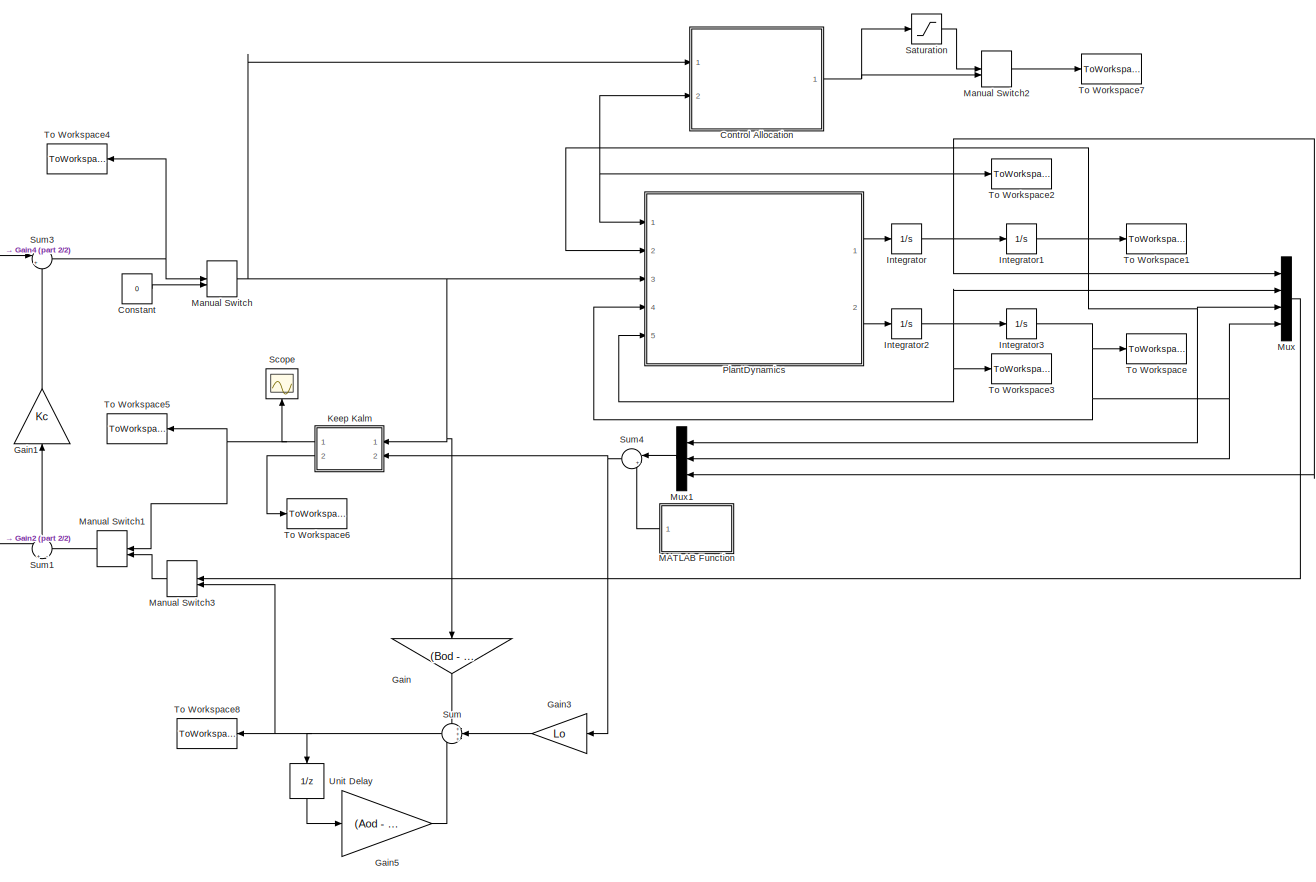
[diagram: root canvas - part 1/2, most of the canvas]
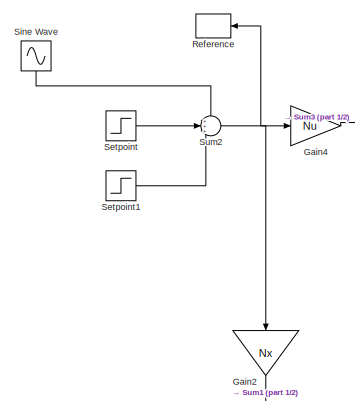
[diagram: root canvas - part 2/2, middle left region]
MODEL slx_67e9fd81cc8e
KIND model
CONFIG AbsTol = auto
CONFIG EnableMultiTasking = off
CONFIG FixedStep = T
CONFIG MaxStep = auto
CONFIG MinStep = auto
CONFIG RelTol = 1e-3
CONFIG SampleTimeConstraint = Unconstrained
CONFIG Solver = FixedStepAuto
CONFIG SolverName = FixedStepAuto
CONFIG StartTime = 0.0
CONFIG StopTime = tsim
BLOCK [Constant] Constant
  Value = 0
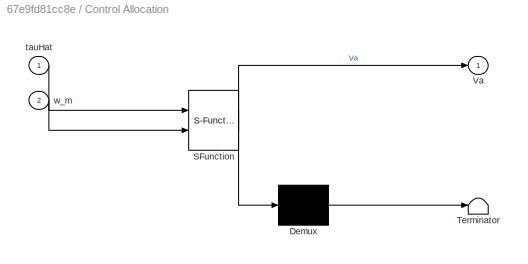
BLOCK [SubSystem] Control Allocation
  ErrorFcn = Stateflow.Translate.translate
  PermitHierarchicalResolution = ExplicitOnly
  Ports = [2, 1]
  RequestExecContextInheritance = off
  SFBlockType = MATLAB Function
  TreatAsAtomicUnit = on
BLOCK [Demux] Control Allocation/ Demux 
  Outputs = 1
  Ports = [1, 1]
BLOCK [S-Function] Control Allocation/ SFunction 
  EnableBusSupport = on
  FunctionName = sf_sfun
  Parameters = B1,B2,B3,B4,B5,B6,Kw,N,Ra,a1,a2,a3,a4,a5,a6,p1,p2,p3
  PortCounts = [2 2]
  Ports = [2, 2]
  SFcnIsStateOwnerBlock = off
  SFunctionDeploymentMode = off
  Tag = Stateflow S-Function DoD_simulink_model 3
BLOCK [Terminator] Control Allocation/ Terminator 
BLOCK [Outport] Control Allocation/Va
  IconDisplay = Port number
BLOCK [Inport] Control Allocation/tauHat
  IconDisplay = Port number
BLOCK [Inport] Control Allocation/w_m
  IconDisplay = Port number
  Port = 2
BLOCK [Gain] Gain
  Gain = (Bod - Lo*Dm)
  Multiplication = Matrix(K*u)
  OutDataTypeStr = Inherit: Inherit via internal rule
  ParamDataTypeStr = Inherit: Inherit via internal rule
  SaturateOnIntegerOverflow = off
BLOCK [Gain] Gain1
  Gain = Kc
  Multiplication = Matrix(K*u)
  OutDataTypeStr = Inherit: Inherit via internal rule
  ParamDataTypeStr = Inherit: Inherit via internal rule
  SaturateOnIntegerOverflow = off
BLOCK [Gain] Gain2
  Gain = Nx
  Multiplication = Matrix(K*u)
  OutDataTypeStr = Inherit: Inherit via internal rule
  ParamDataTypeStr = Inherit: Inherit via internal rule
  SaturateOnIntegerOverflow = off
BLOCK [Gain] Gain3
  Gain = Lo
  Multiplication = Matrix(K*u)
  OutDataTypeStr = Inherit: Inherit via internal rule
  ParamDataTypeStr = Inherit: Inherit via internal rule
  SaturateOnIntegerOverflow = off
BLOCK [Gain] Gain4
  Gain = Nu
  Multiplication = Matrix(K*u)
  OutDataTypeStr = Inherit: Inherit via internal rule
  ParamDataTypeStr = Inherit: Inherit via internal rule
  SaturateOnIntegerOverflow = off
BLOCK [Gain] Gain5
  Gain = (Aod - Lo*Cm)
  Multiplication = Matrix(K*u)
  OutDataTypeStr = Inherit: Inherit via internal rule
  ParamDataTypeStr = Inherit: Inherit via internal rule
  SaturateOnIntegerOverflow = off
BLOCK [Integrator] Integrator
  Ports = [1, 1]
BLOCK [Integrator] Integrator1
  InitialCondition = theta0
  Ports = [1, 1]
BLOCK [Integrator] Integrator2
  Ports = [1, 1]
BLOCK [Integrator] Integrator3
  InitialCondition = phi0
  Ports = [1, 1]
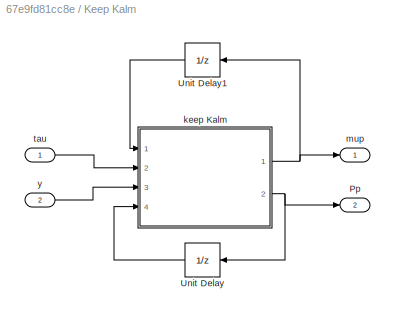
BLOCK [SubSystem] Keep Kalm
  Ports = [2, 2]
  RequestExecContextInheritance = off
BLOCK [Outport] Keep Kalm/Pp
  IconDisplay = Port number
  Port = 2
BLOCK [UnitDelay] Keep Kalm/Unit Delay
  InitialCondition = Pp_init
  InputProcessing = Elements as channels (sample based)
  SampleTime = -1
BLOCK [UnitDelay] Keep Kalm/Unit Delay1
  InitialCondition = mup_init
  InputProcessing = Elements as channels (sample based)
  SampleTime = -1
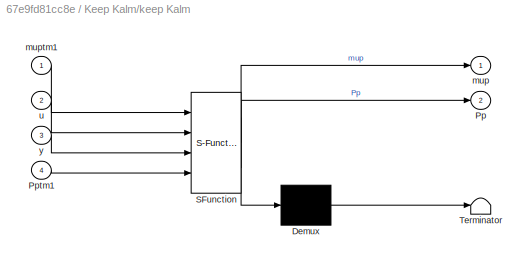
BLOCK [SubSystem] Keep Kalm/keep Kalm 
  ErrorFcn = Stateflow.Translate.translate
  PermitHierarchicalResolution = ExplicitOnly
  Ports = [4, 2]
  RequestExecContextInheritance = off
  SFBlockType = MATLAB Function
  TreatAsAtomicUnit = on
BLOCK [Demux] Keep Kalm/keep Kalm / Demux 
  Outputs = 1
  Ports = [1, 1]
BLOCK [S-Function] Keep Kalm/keep Kalm / SFunction 
  EnableBusSupport = on
  FunctionName = sf_sfun
  Parameters = Aod,Bod,Cm,Dm,Qo,Ro
  PortCounts = [4 3]
  Ports = [4, 3]
  SFcnIsStateOwnerBlock = off
  SFunctionDeploymentMode = off
  Tag = Stateflow S-Function DoD_simulink_model 1
BLOCK [Terminator] Keep Kalm/keep Kalm / Terminator 
BLOCK [Outport] Keep Kalm/keep Kalm /Pp
  IconDisplay = Port number
  Port = 2
BLOCK [Inport] Keep Kalm/keep Kalm /Pptm1
  IconDisplay = Port number
  Port = 4
BLOCK [Outport] Keep Kalm/keep Kalm /mup
  IconDisplay = Port number
BLOCK [Inport] Keep Kalm/keep Kalm /muptm1
  IconDisplay = Port number
BLOCK [Inport] Keep Kalm/keep Kalm /u
  IconDisplay = Port number
  Port = 2
BLOCK [Inport] Keep Kalm/keep Kalm /y
  IconDisplay = Port number
  Port = 3
BLOCK [Outport] Keep Kalm/mup
  IconDisplay = Port number
BLOCK [Inport] Keep Kalm/tau
  IconDisplay = Port number
BLOCK [Inport] Keep Kalm/y
  IconDisplay = Port number
  Port = 2
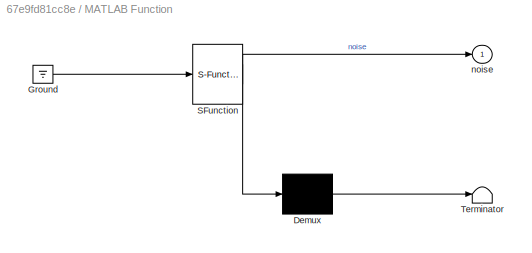
BLOCK [SubSystem] MATLAB Function
  ErrorFcn = Stateflow.Translate.translate
  PermitHierarchicalResolution = ExplicitOnly
  Ports = [0, 1]
  RequestExecContextInheritance = off
  SFBlockType = MATLAB Function
  TreatAsAtomicUnit = on
BLOCK [Demux] MATLAB Function/ Demux 
  Outputs = 1
  Ports = [1, 1]
BLOCK [Ground] MATLAB Function/ Ground 
BLOCK [S-Function] MATLAB Function/ SFunction 
  EnableBusSupport = on
  FunctionName = sf_sfun
  PortCounts = [1 2]
  Ports = [1, 2]
  SFcnIsStateOwnerBlock = off
  SFunctionDeploymentMode = off
  Tag = Stateflow S-Function DoD_simulink_model 4
BLOCK [Terminator] MATLAB Function/ Terminator 
BLOCK [Outport] MATLAB Function/noise
  IconDisplay = Port number
BLOCK [ManualSwitch] Manual Switch
BLOCK [ManualSwitch] Manual Switch1
  CurrentSetting = 0
BLOCK [ManualSwitch] Manual Switch2
  CurrentSetting = 0
BLOCK [ManualSwitch] Manual Switch3
BLOCK [Mux] Mux
  DisplayOption = bar
  Ports = [4, 1]
BLOCK [Mux] Mux1
  DisplayOption = bar
  Inputs = 3
  Ports = [3, 1]
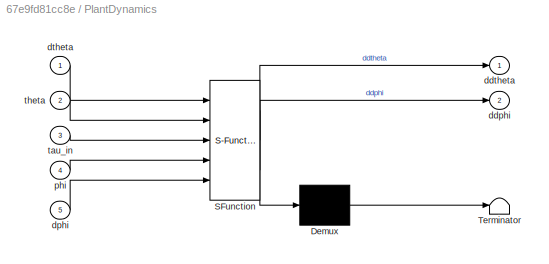
BLOCK [SubSystem] PlantDynamics 
  ErrorFcn = Stateflow.Translate.translate
  PermitHierarchicalResolution = ExplicitOnly
  Ports = [5, 2]
  RequestExecContextInheritance = off
  SFBlockType = MATLAB Function
  TreatAsAtomicUnit = on
BLOCK [Demux] PlantDynamics / Demux 
  Outputs = 1
  Ports = [1, 1]
BLOCK [S-Function] PlantDynamics / SFunction 
  EnableBusSupport = on
  FunctionName = sf_sfun
  Parameters = DD,MM,g,mo,rh,ro
  PortCounts = [5 3]
  Ports = [5, 3]
  SFcnIsStateOwnerBlock = off
  SFunctionDeploymentMode = off
  Tag = Stateflow S-Function DoD_simulink_model 2
BLOCK [Terminator] PlantDynamics / Terminator 
BLOCK [Outport] PlantDynamics /ddphi
  IconDisplay = Port number
  Port = 2
BLOCK [Outport] PlantDynamics /ddtheta
  IconDisplay = Port number
BLOCK [Inport] PlantDynamics /dphi
  IconDisplay = Port number
  Port = 5
BLOCK [Inport] PlantDynamics /dtheta
  IconDisplay = Port number
BLOCK [Inport] PlantDynamics /phi
  IconDisplay = Port number
  Port = 4
BLOCK [Inport] PlantDynamics /tau_in
  IconDisplay = Port number
  Port = 3
BLOCK [Inport] PlantDynamics /theta
  IconDisplay = Port number
  Port = 2
BLOCK [ToWorkspace] Reference
  MaxDataPoints = inf
  Ports = [1]
  SampleTime = -1
  Save2DSignal = 3-D array (concatenate along third dimension)
  SaveFormat = Structure With Time
  VariableName = ref
BLOCK [Saturate] Saturation
  InputPortMap = u0
  LowerLimit = -6
  Ports = [1, 1]
  UpperLimit = 6
BLOCK [Scope] Scope
  Floating = off
  NumInputPorts = 1
  Ports = [1]
  ScopeSpecificationString = Simulink.scopes.TimeScopeBlockCfg('CurrentConfiguration', extmgr.ConfigurationSet(extmgr.Configuration('Core','General UI',true),extmgr.Configuration('Core','Source UI',true),extmgr.Configuration('Sources','WiredSimulink',true),extmgr.Configuration('Visuals','Time Domain',true,'SerializedDisplays',{struct('MinYLimReal','-2.26618','MaxYLimReal','19.53162','YLabelReal','','MinYLimMag','0.00000','Max...<+1465ch>
BLOCK [Step] Setpoint
  After = 2*pi
  SampleTime = 0
  Time = 3
BLOCK [Step] Setpoint1
  After = -pi
  SampleTime = 0
  Time = 6
BLOCK [Sin] Sine Wave
  Amplitude = 3
  Ports = [0, 1]
  SampleTime = 0
BLOCK [Sum] Sum
  IconShape = round
  InputSameDT = off
  Inputs = +++
  OutDataTypeStr = Inherit: Inherit via internal rule
  Ports = [3, 1]
  SaturateOnIntegerOverflow = off
BLOCK [Sum] Sum1
  IconShape = round
  InputSameDT = off
  Inputs = +|-
  OutDataTypeStr = Inherit: Inherit via internal rule
  Ports = [2, 1]
  SaturateOnIntegerOverflow = off
BLOCK [Sum] Sum2
  IconShape = round
  InputSameDT = off
  Inputs = +++
  OutDataTypeStr = Inherit: Inherit via internal rule
  Ports = [3, 1]
  SaturateOnIntegerOverflow = off
BLOCK [Sum] Sum3
  IconShape = round
  InputSameDT = off
  Inputs = |++
  OutDataTypeStr = Inherit: Inherit via internal rule
  Ports = [2, 1]
  SaturateOnIntegerOverflow = off
BLOCK [Sum] Sum4
  IconShape = round
  InputSameDT = off
  Inputs = |++
  OutDataTypeStr = Inherit: Inherit via internal rule
  Ports = [2, 1]
  SaturateOnIntegerOverflow = off
BLOCK [ToWorkspace] To Workspace
  FixptAsFi = on
  MaxDataPoints = inf
  Ports = [1]
  SampleTime = -1
  Save2DSignal = 3-D array (concatenate along third dimension)
  SaveFormat = Structure With Time
  VariableName = phi
BLOCK [ToWorkspace] To Workspace1
  FixptAsFi = on
  MaxDataPoints = inf
  Ports = [1]
  SampleTime = -1
  Save2DSignal = 3-D array (concatenate along third dimension)
  SaveFormat = Structure With Time
  VariableName = theta
BLOCK [ToWorkspace] To Workspace2
  FixptAsFi = on
  MaxDataPoints = inf
  Ports = [1]
  SampleTime = -1
  Save2DSignal = 3-D array (concatenate along third dimension)
  SaveFormat = Structure With Time
  VariableName = dtheta
BLOCK [ToWorkspace] To Workspace3
  FixptAsFi = on
  MaxDataPoints = inf
  Ports = [1]
  SampleTime = -1
  Save2DSignal = 3-D array (concatenate along third dimension)
  SaveFormat = Structure With Time
  VariableName = dphi
BLOCK [ToWorkspace] To Workspace4
  FixptAsFi = on
  MaxDataPoints = inf
  Ports = [1]
  SampleTime = -1
  Save2DSignal = 3-D array (concatenate along third dimension)
  SaveFormat = Structure With Time
  VariableName = tau
BLOCK [ToWorkspace] To Workspace5
  FixptAsFi = on
  MaxDataPoints = inf
  Ports = [1]
  SampleTime = -1
  Save2DSignal = 3-D array (concatenate along third dimension)
  SaveFormat = Structure With Time
  VariableName = mup
BLOCK [ToWorkspace] To Workspace6
  FixptAsFi = on
  MaxDataPoints = inf
  Ports = [1]
  SampleTime = -1
  Save2DSignal = 3-D array (concatenate along third dimension)
  SaveFormat = Structure With Time
  VariableName = Pp
BLOCK [ToWorkspace] To Workspace7
  FixptAsFi = on
  MaxDataPoints = inf
  Ports = [1]
  SampleTime = -1
  Save2DSignal = 3-D array (concatenate along third dimension)
  SaveFormat = Structure With Time
  VariableName = Va
BLOCK [ToWorkspace] To Workspace8
  FixptAsFi = on
  MaxDataPoints = inf
  Ports = [1]
  SampleTime = -1
  Save2DSignal = 3-D array (concatenate along third dimension)
  SaveFormat = Structure With Time
  VariableName = mup_L
BLOCK [UnitDelay] Unit Delay
  InitialCondition = mup_init
  InputProcessing = Elements as channels (sample based)
  SampleTime = T
LINE Constant:1 -> Manual Switch:2
NET Control Allocation:1 -> Manual Switch2:2, Saturation:1
LINE Gain1:1 -> Sum3:2
LINE Gain2:1 -> Sum1:1
LINE Gain3:1 -> Sum:2
LINE Gain4:1 -> Sum3:1
LINE Gain5:1 -> Sum:3
LINE Gain:1 -> Sum:1
NET Integrator1:1 -> Mux1:1, Mux:3, PlantDynamics :2, To Workspace1:1
NET Integrator2:1 -> Integrator3:1, Mux:2, PlantDynamics :5, To Workspace3:1
NET Integrator3:1 -> Mux1:2, Mux:4, PlantDynamics :4, To Workspace:1
NET Integrator:1 -> Control Allocation:2, Integrator1:1, Mux1:3, Mux:1, PlantDynamics :1, To Workspace2:1
LINE Keep Kalm/Unit Delay1:1 -> Keep Kalm/keep Kalm :1
LINE Keep Kalm/Unit Delay:1 -> Keep Kalm/keep Kalm :4
NET Keep Kalm/keep Kalm :1 -> Keep Kalm/Unit Delay1:1, Keep Kalm/mup:1
NET Keep Kalm/keep Kalm :2 -> Keep Kalm/Pp:1, Keep Kalm/Unit Delay:1
LINE Keep Kalm/tau:1 -> Keep Kalm/keep Kalm :2
LINE Keep Kalm/y:1 -> Keep Kalm/keep Kalm :3
NET Keep Kalm:1 -> Manual Switch1:1, Scope:1, To Workspace5:1
LINE Keep Kalm:2 -> To Workspace6:1
LINE MATLAB Function:1 -> Sum4:2
LINE Manual Switch1:1 -> Sum1:2
LINE Manual Switch2:1 -> To Workspace7:1
LINE Manual Switch3:1 -> Manual Switch1:2
NET Manual Switch:1 -> Control Allocation:1, Gain:1, Keep Kalm:1, PlantDynamics :3
LINE Mux1:1 -> Sum4:1
LINE Mux:1 -> Manual Switch3:1
LINE PlantDynamics :1 -> Integrator:1
LINE PlantDynamics :2 -> Integrator2:1
LINE Saturation:1 -> Manual Switch2:1
LINE Setpoint1:1 -> Sum2:3
LINE Setpoint:1 -> Sum2:2
LINE Sine Wave:1 -> Sum2:1
LINE Sum1:1 -> Gain1:1
NET Sum2:1 -> Gain2:1, Gain4:1, Reference:1
NET Sum3:1 -> Manual Switch:1, To Workspace4:1
NET Sum4:1 -> Gain3:1, Keep Kalm:2
NET Sum:1 -> Manual Switch3:2, To Workspace8:1, Unit Delay:1
LINE Unit Delay:1 -> Gain5:1
note: NET lines group one-source signal fan-out (src -> all destinations, sorted); 1:1 wires keep LINE
CHART Keep Kalm/keep Kalm
 states=1 transitions=1
  STATE_LABEL 'eML_blk_kernel()'
  STATE_LABEL "SCRIPT:\nfunction [mup, Pp] = fcn(muptm1, u, y, Pptm1, Cm, Bod, Qo, Ro, Aod, Dm)\n\n% Update with new measurement\nmuf = muptm1 + Pptm1*Cm'*((Cm*Pptm1*Cm' + Ro)\\(y - Cm*muptm1 - Dm*u));\nPf = Pptm1 - Pptm1*Cm'*((Cm*Pptm1*Cm' + Ro)\\(Cm*Pptm1));\n\n% Predict Forward\nmup = Aod*muf + Bod*u;\nPp = Aod*Pf*Aod' + Qo;\n\n\n% muf = mup(:,t) + Pp(:,:,t)*C'*((C*Pp(:,:,t)*C' + R)\\(mup(:,t) - C*mup(:,t) - D*u(:,t)));\n% P...<+173ch>"
CHART PlantDynamics
 states=1 transitions=1
  STATE_LABEL 'eML_blk_kernel()'
  STATE_LABEL 'SCRIPT:\nfunction [ddtheta, ddphi] = DoDPlantModel(dtheta, theta, tau_in, MM, phi, dphi, mo, ro, rh, g, DD)\n\n\nqdot = [dtheta; dphi];\n\ngq = [0; -mo*g*(rh + ro)*sin(phi)];\n\ntau_in = [tau_in; 0];\nout = MM\\(tau_in - DD*qdot - gq);\n% out = MM\\(tau_in - gq);\nddtheta = out(1);\nddphi = out(2);\n\n'
CHART Control Allocation states=1 transitions=1
  STATE_LABEL 'eML_blk_kernel()'
  STATE_LABEL 'SCRIPT:\nfunction Va = controlAllocation(tauHat, w_m, Ra, Kw, N, a1, a2, a3, B1, B2,...\n    B3, a4, a5, a6, B4, B5, B6, p1, p2, p3)\n% Correct velocity\nw_m = w_m.*N;\n\n% Heaviside functions\nheavi_p =@(x) 1./(1 + exp(-2.*50.*x));\nheavi_m =@(x) 1./(1 + exp(-2.*50.*-x));\n\n% Friction function\ntauF = (a1.*(tanh(B1.*w_m) - tanh(B2.*w_m)) + a2.*tanh(B3.*w_m) + a3.*w_m).*heavi_p(w_m)...\n                + (a4...<+199ch>'
CHART MATLAB Function states=1 transitions=1
  STATE_LABEL 'eML_blk_kernel()'
  STATE_LABEL 'SCRIPT:\nfunction noise = noisyboi()\nnoise = 0.0001.*randn(3,1);\n\n'
